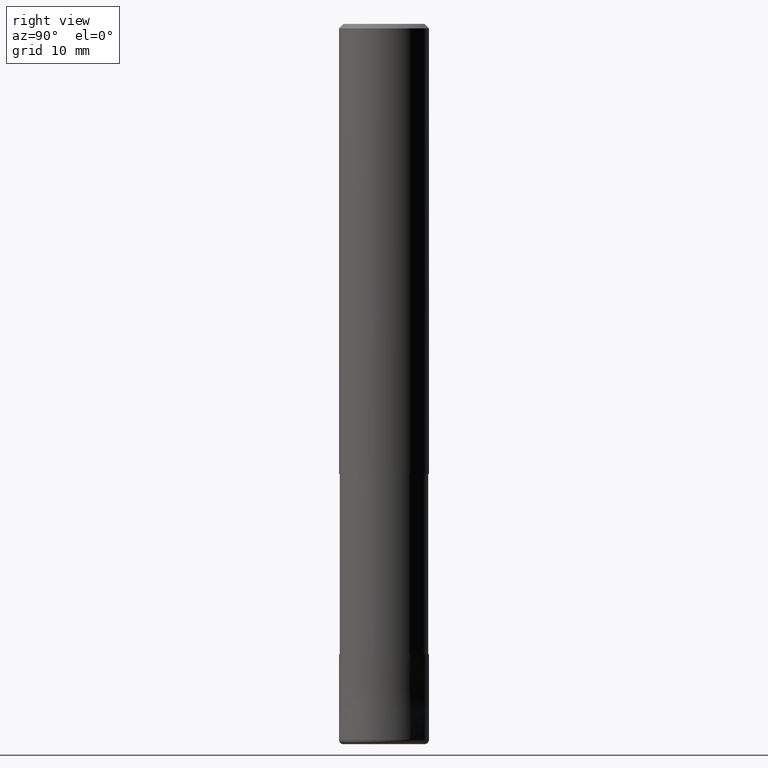
[diagram: clean part render]
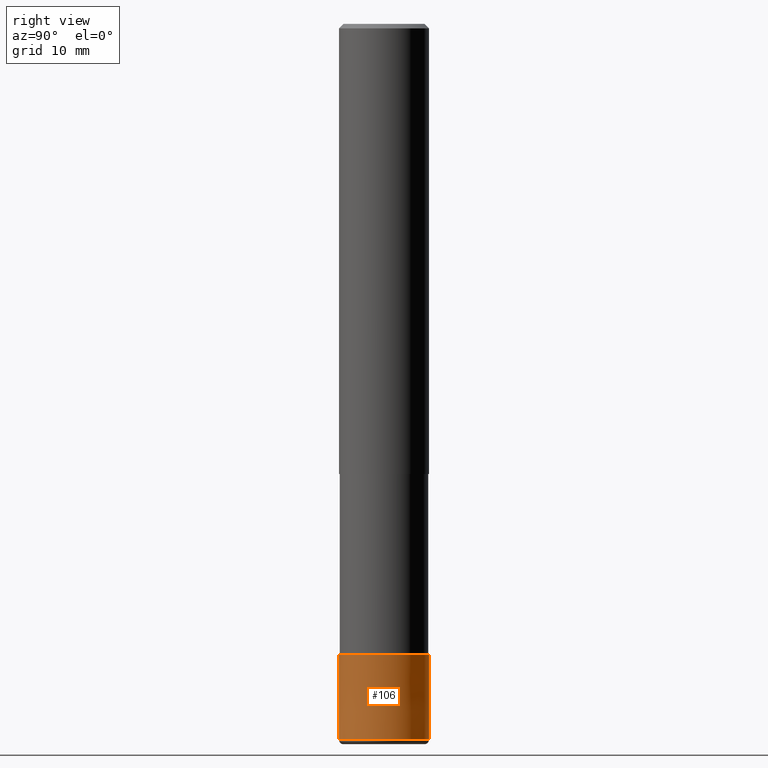
[diagram: same view with one face highlighted and labeled with its STEP entity id]
A machine part, right view. The second image highlights one B-rep face of the part: STEP entity #106.
In plain terms, the highlighted conical surface has half-angle 0.001 deg.
Its self-contained STEP definition (entity closure, byte-faithful):
#98=VERTEX_POINT('',#236);
#104=VERTEX_POINT('',#242);
#106=ADVANCED_FACE('',(#244),#245,.T.);
#112=EDGE_CURVE('',#104,#160,#251,.T.);
#116=EDGE_CURVE('',#104,#208,#255,.T.);
#120=EDGE_CURVE('',#208,#98,#260,.T.);
#160=VERTEX_POINT('',#304);
#188=EDGE_CURVE('',#98,#160,#338,.T.);
#208=VERTEX_POINT('',#361);
#236=CARTESIAN_POINT('',(6.12303176911189E-016,-5.0,-79.5));
#242=CARTESIAN_POINT('',(0.0,4.9999,-70.0));
#244=FACE_OUTER_BOUND('',#391,.T.);
#245=CONICAL_SURFACE('',#392,4.99995,1.05263157890604E-005);
#251=CIRCLE('',#400,4.9999);
#255=LINE('',#405,#406);
#260=CIRCLE('',#412,5.0);
#304=CARTESIAN_POINT('',(6.1229093084765E-016,-4.9999,-70.0));
#338=LINE('',#507,#508);
#361=CARTESIAN_POINT('',(0.0,5.0,-79.5));
#391=EDGE_LOOP('',(#555,#556,#557,#558));
#392=AXIS2_PLACEMENT_3D('',#559,#560,#561);
#400=AXIS2_PLACEMENT_3D('',#565,#566,#567);
#405=CARTESIAN_POINT('',(-6.1229705387942E-016,4.99995,-74.75));
#406=VECTOR('',#568,1.0);
#412=AXIS2_PLACEMENT_3D('',#575,#576,#577);
#507=CARTESIAN_POINT('',(6.1229705387942E-016,-4.99995,-74.75));
#508=VECTOR('',#680,1.0);
#555=ORIENTED_EDGE('',*,*,#116,.F.);
#556=ORIENTED_EDGE('',*,*,#112,.T.);
#557=ORIENTED_EDGE('',*,*,#188,.F.);
#558=ORIENTED_EDGE('',*,*,#120,.F.);
#559=CARTESIAN_POINT('',(0.0,0.0,-74.75));
#560=DIRECTION('',(0.0,-0.0,-1.0));
#561=DIRECTION('',(0.0,1.0,0.0));
#565=CARTESIAN_POINT('',(0.0,0.0,-70.0));
#566=DIRECTION('',(0.0,0.0,-1.0));
#567=DIRECTION('',(0.0,1.0,0.0));
#568=DIRECTION('',(-1.28905931973861E-021,1.0526315788866E-005,-0.999999999944598));
#575=CARTESIAN_POINT('',(0.0,0.0,-79.5));
#576=DIRECTION('',(0.0,0.0,-1.0));
#577=DIRECTION('',(0.0,1.0,0.0));
#680=DIRECTION('',(-1.28905931973861E-021,1.0526315788866E-005,0.999999999944598));